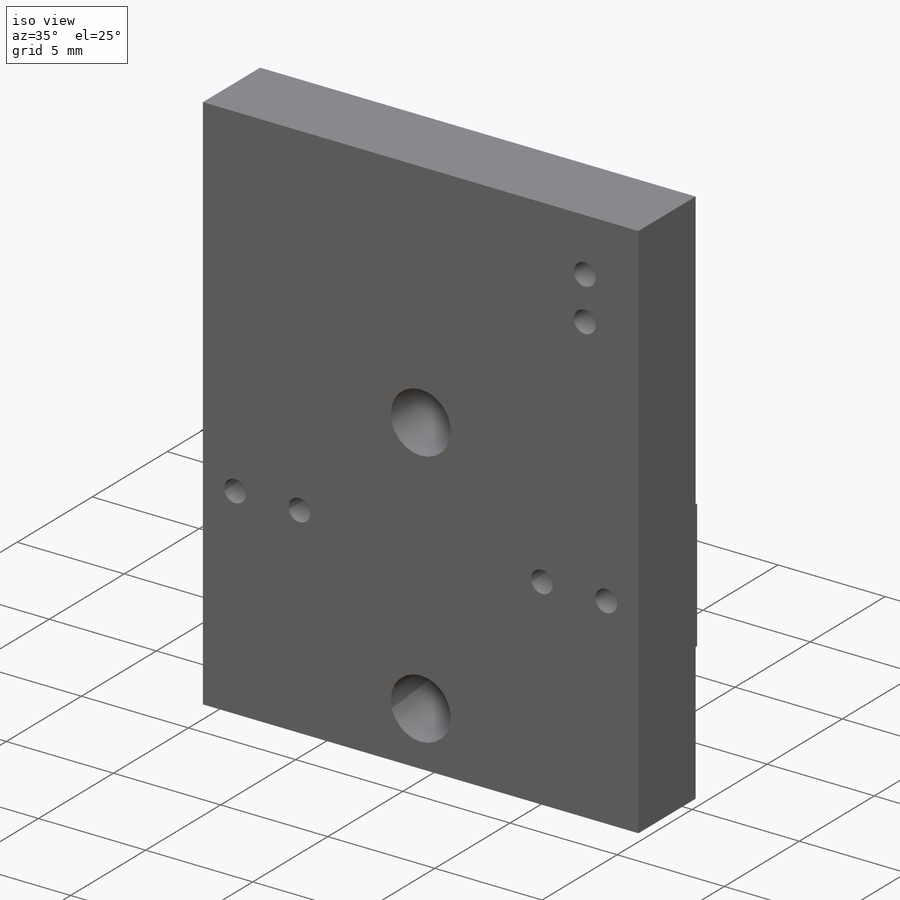
[diagram: iso view]
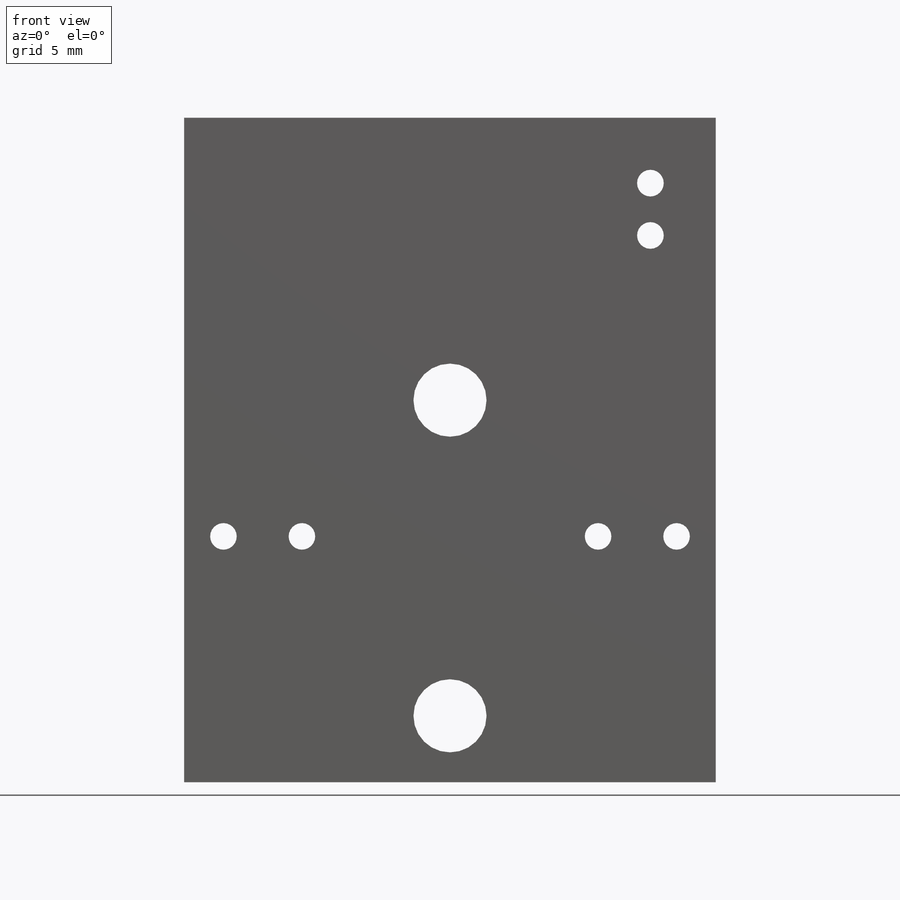
[diagram: front view]
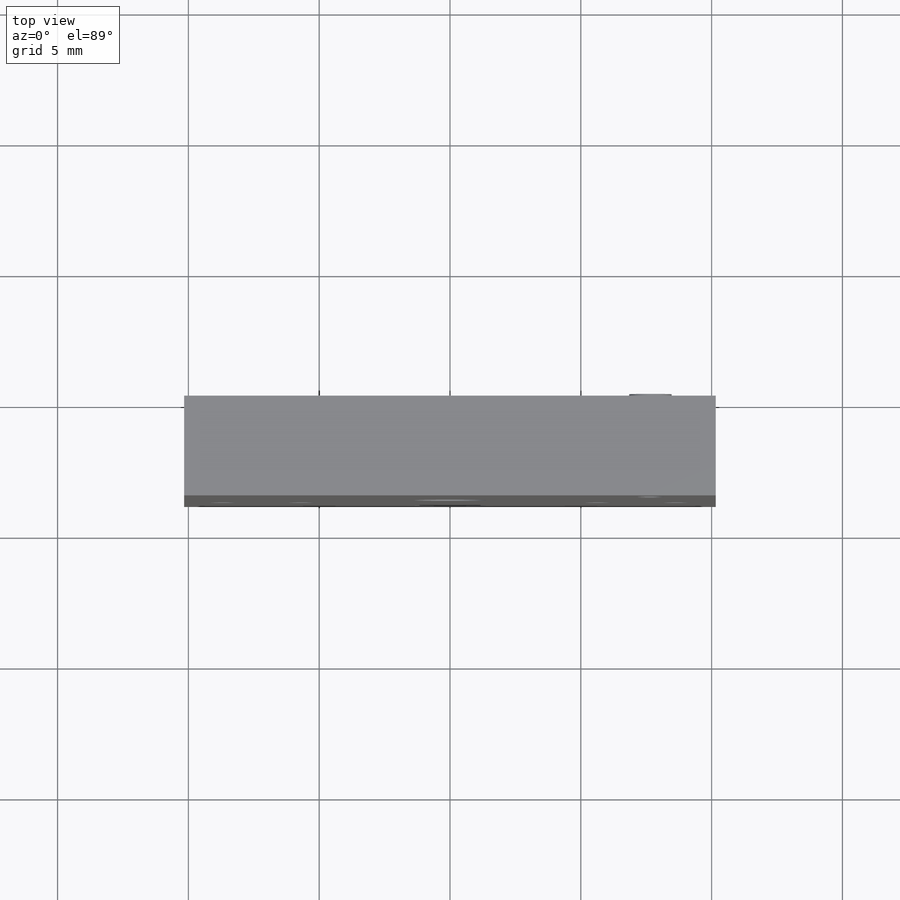
[diagram: top view]
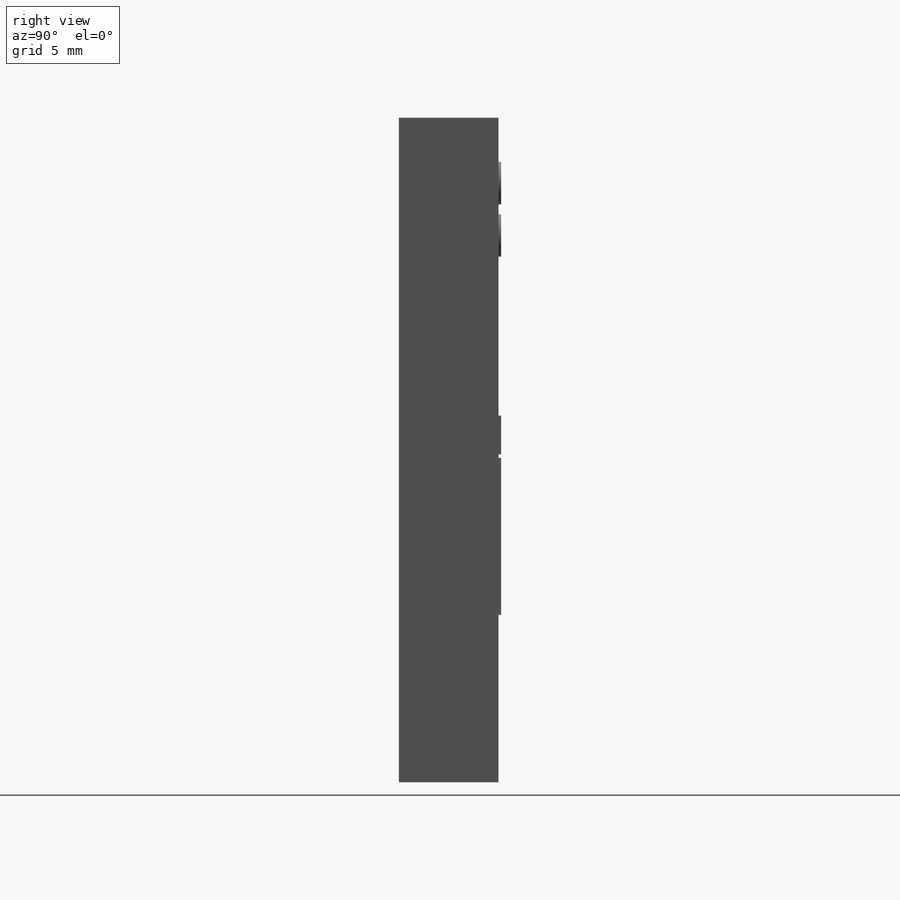
[diagram: right view]
SOLIDWORKS PART (.sldprt)
format: sldprt  version: not decoded by parser v0  size: 268,800 bytes
history: native  units: mm
features: sketch x4, extrude x2, material x1 (+13 scaffold rows collapsed)
feature tree (20):
  scaffold x13  (default folders/planes/origin — collapsed)
  material  "Silicon"
  sketch  "Sketch1"  dims[c1.D4=2.794mm c1.D6=2.794mm c1.D7=1.016mm c1.D9=1.016mm c1.D13=1.016mm c1.D15=1.02mm c1.D16=1.02mm c1.D17=1.02mm c1.D18=1.02mm c1.D1=25.4mm c1.D2=20.32mm c1.D3=2.54mm c1.D5=12.065mm c1.D8=9.398mm c2.D9=1.5mm c2.D10=3.0mm c2.D11=3.0mm c2.D12=1.5mm c2.D14=1.5mm c2.D17=2.0mm c2.D18=2.5mm c2.D19=2.5mm]
  extrude  "Board"  Depth=3.81mm
  sketch  "Sketch2"  dims[c1.D8=~1.748262mm c1.D9=1.02mm c1.D3=0.4mm c1.D4=0.7mm c1.D5=0.4mm c1.D6=0.7mm c1.D7=0.4mm c2.D8=0.3mm c2.D9=0.3mm c2.D1=0.5mm c2.D2=0.5mm]
  extrude  "Solder Pads"  Depth=0.1mm
  sketch  "Cutoff Line Front"  dims[D1=2.54mm]
  sketch  "Cutoff Line Back"  dims[D1=2.54mm]
decode coverage: 6 of 6 modeling features carry decoded parameters
note: ~ marks probable driven/reference dimensions
note: suppression state not decoded; provenance and decode notes live in map.json
